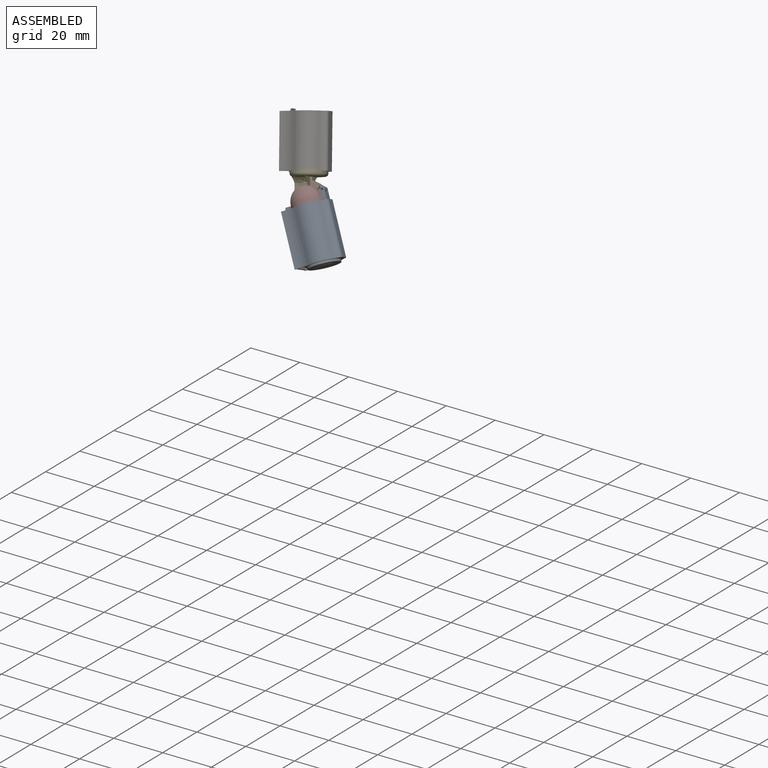
[diagram: assembled view]
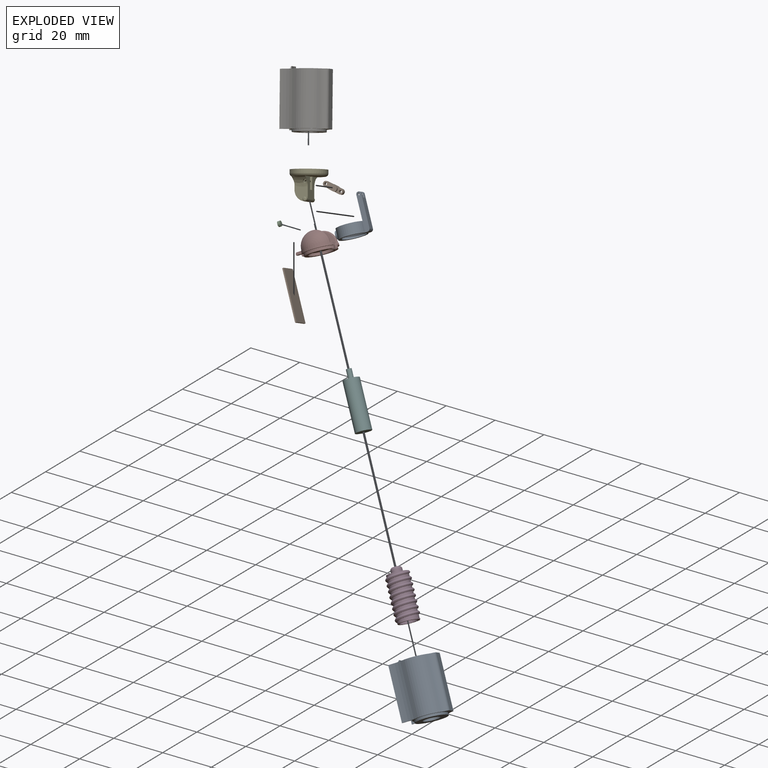
[diagram: exploded view]
GUIDED TOUR — MATED ASSEMBLY (Onshape document 57e1681a29d2af11276832ef, AutoMate assembly 57e1681a29d2af11276832ef_2e630c3e89687d6d87365b1d_8f4f6b7c45595076984b9f0d_default)

This assembly has 10 components, labeled P0..P9 below (a component is one placed occurrence of a part; the same part can appear more than once), held together by 9 mates. A mate is a constraint between two components; its type names the relative motion it leaves free:
  FASTENED — locks the two components together rigidly (no relative motion),
  REVOLUTE — leaves rotation about the listed axis free (a hinge).
Axis/direction vectors are unit vectors and 'through' points are millimeter coordinates, both in the assembly's world frame.

MATES
  1. REVOLUTE "Top-to-Worm": P7 <-> P3, axis (-0.497, 0.313, 0.810) through (-23.39, 19.40, 32.22) mm
  2. REVOLUTE "Nut-to-Link": P1 <-> P8, axis (-0.153, 0.887, -0.436) through (-20.10, 23.21, 36.93) mm
  3. REVOLUTE "Link-to-Pivot": P1 <-> P4, axis (-0.153, 0.887, -0.436) through (-25.92, 22.91, 38.36) mm
  4. FASTENED "Pcb-to-Sleeve": P9 <-> P0, direction (0.854, 0.340, 0.393) through (-25.18, 13.07, 19.97) mm
  5. FASTENED "Top-to-Sleeve": P7 <-> P0, direction (0.497, -0.313, -0.810) through (-22.64, 18.93, 31.00) mm
  6. FASTENED "Motor-to-Worm": P5 <-> P3, direction (-0.497, 0.313, 0.810) through (-23.51, 19.48, 32.42) mm
  7. FASTENED "Magnet-to-Bolt": P2 <-> P8, direction (0.854, 0.340, 0.393) through (-23.84, 15.39, 24.07) mm
  8. REVOLUTE "Pivot-to-Top": P4 <-> P7, axis (0.153, -0.887, 0.436) through (-23.62, 16.87, 34.91) mm
  9. FASTENED "Pivot-to-Sleeve": P4 <-> P6, direction (-0.260, 0.390, 0.883) through (-26.36, 23.11, 40.86) mm

ASSEMBLY ORDER
  1. P4 — the base component [order heuristic]
  2. P1 — core [order heuristic]
  3. P6 — core [order heuristic]
  4. P7 — core [order heuristic]
  5. P3 — core [order heuristic]
  6. P5 [order verified]
  7. P8 — core [order heuristic]
  8. P2 [order verified]
  9. P9 [order verified]
  10. P0 — core [order heuristic]
(P2, P9 verified with a relaxed clearance tolerance: the source model stores slight part interference there.)
Order-tag legend:
  [order verified] — this step's position reverses a verified removal order: the component was checked to insert without passing through the ones already placed.
  [order heuristic] — the first 7 components form the assembly's core: parts whose collision-free extraction could not be verified, listed in mate-graph order.

Of the 10 components, 4 carry the full construction recipe — the FeatureScript program that regenerates the part's solid from scratch; the rest are supplied as boundary geometry only.
Each toured component is shown spotlighted twice — in the assembled view, then in the exploded view, where a leader line traces a displaced component back to its assembled socket (saturated green if recipe-attached, orange if geometry-only; every other component desaturated gray) — followed by its recipe or geometry summary and the mates that hold it.
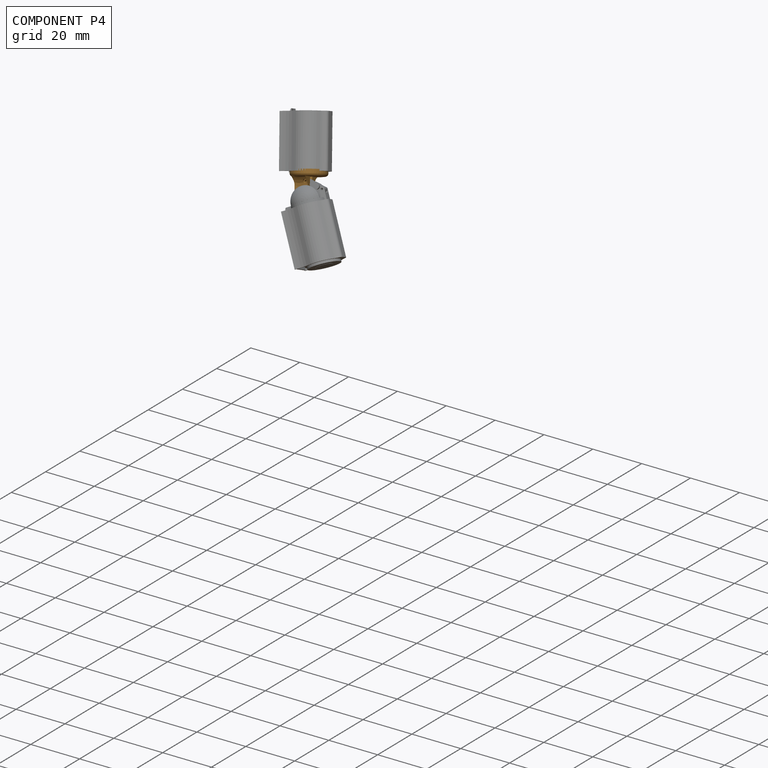
[diagram: component P4 — assembled]
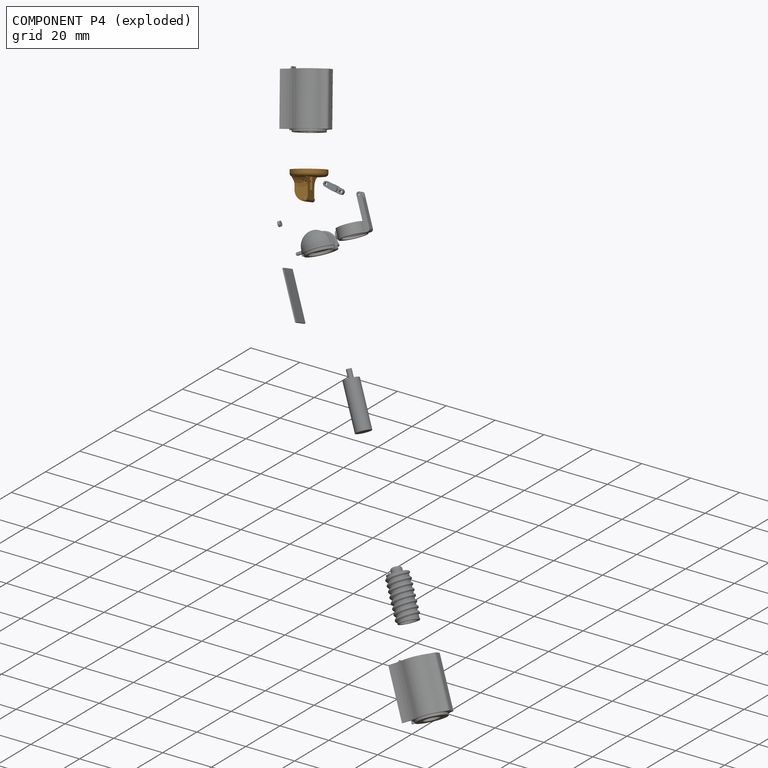
[diagram: component P4 — exploded]
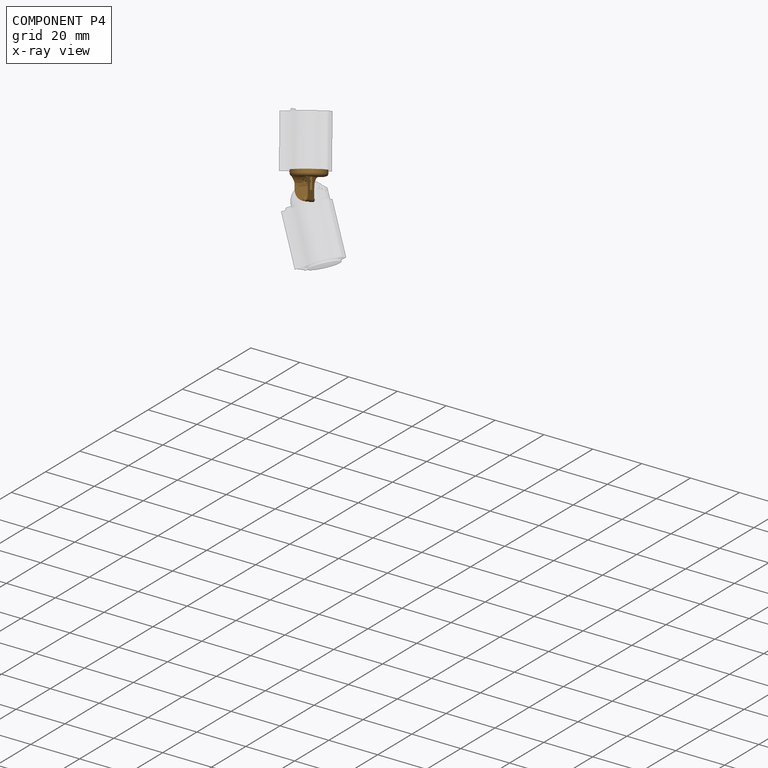
[diagram: component P4 — x-ray view]
COMPONENT P4 — geometry summary (no construction recipe available for this part):
  bounding box: 14.9 x 14.2 x 10.9 mm
  B-rep topology: 1 solid, 32 faces, 168 edges
  volume: 342 mm^3 (15% of its bounding box)
  symmetry: mirror-symmetric across its y mid-plane
Held by: REVOLUTE mate "Link-to-Pivot" to P1; REVOLUTE mate "Pivot-to-Top" to P7; FASTENED mate "Pivot-to-Sleeve" to P6.
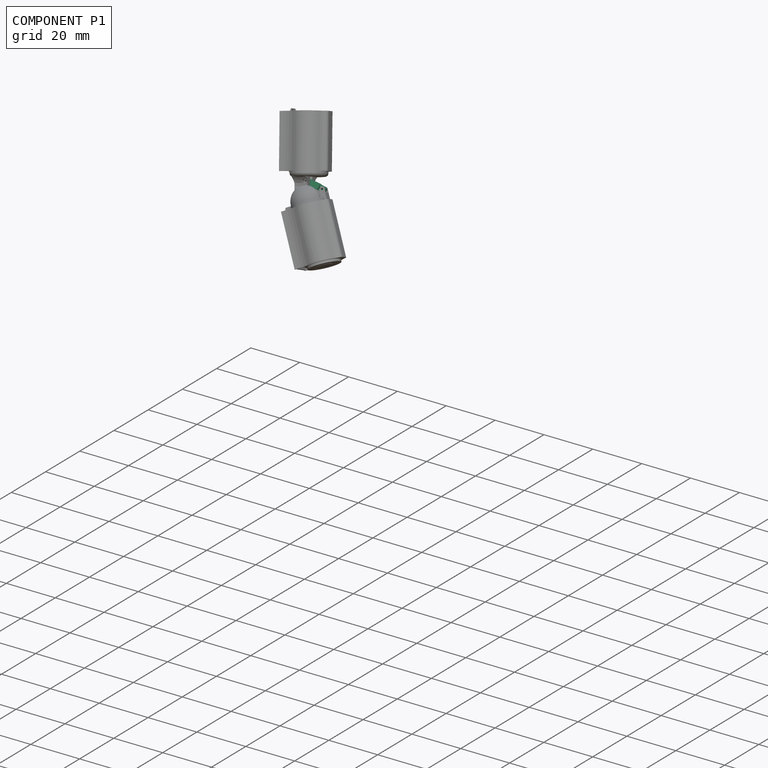
[diagram: component P1 — assembled]
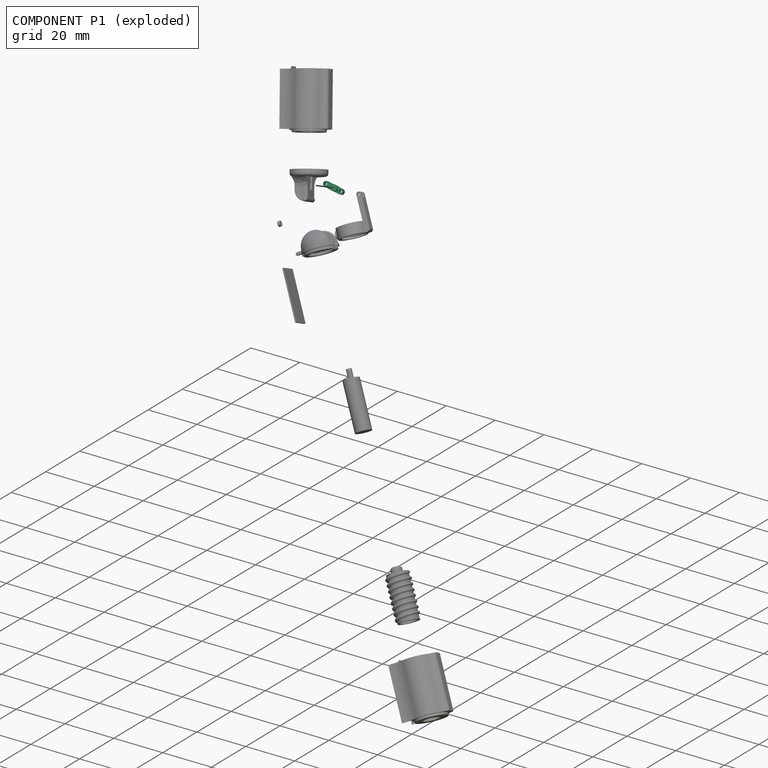
[diagram: component P1 — exploded]
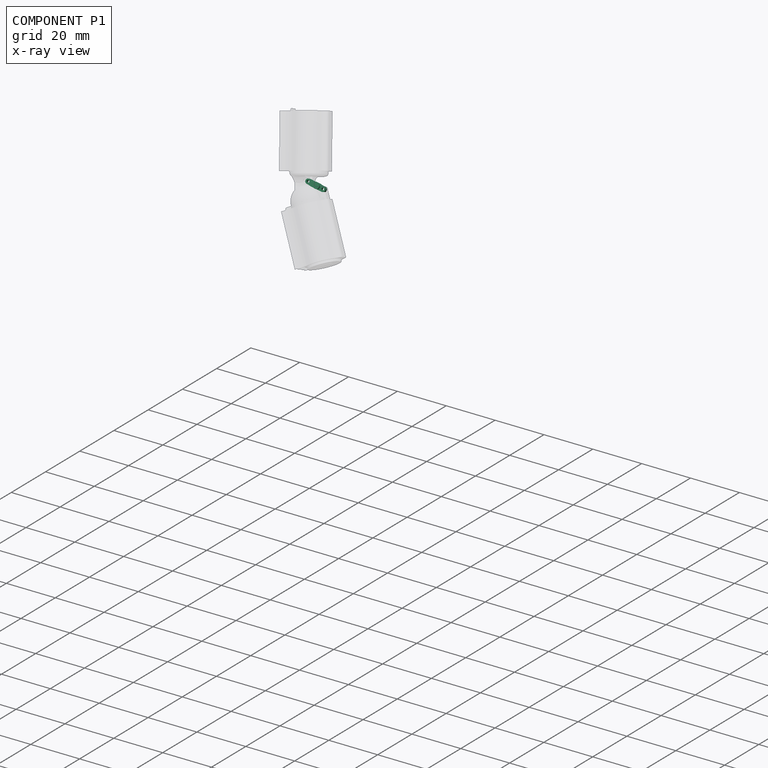
[diagram: component P1 — x-ray view]
COMPONENT P1 — recipe-attached (CADFS 00252577, mesh-verified: the recipe's output STEP matches this component's geometry to below the mesh-comparison resolution (tessellation chordal tolerance ~0.0132 mm)).
Held by: REVOLUTE mate "Nut-to-Link" to P8; REVOLUTE mate "Link-to-Pivot" to P4.
Construction recipe (FeatureScript — the CAD program that rebuilds this solid; sketch coordinates are in the units given by the * unit suffixes, e.g. mm):

FeatureScript 1511;
import(path : "onshape/std/geometry.fs", version : "1511.0");
import(path : "onshape/std/common.fs", version : "1511.0");
const mm = millimeter;
const VERTEX = EntityType.VERTEX;
const EDGE = EntityType.EDGE;
const FACE = EntityType.FACE;
const BODY = EntityType.BODY;
function v(x, y){return vector(x, y);}
function OD(order){return orderDisambiguation(order);}
function OSD(set){return originalSetDisambiguation(set);}
function TD(topology){return topologyDisambiguation(topology);}
function TDD(query){return trueDependencyDisambiguation(query);}
function sQuery(a, b, c) {return sketchEntityQuery(a, b, c);}

annotation { "Feature Type Name" : "Feature", "Feature Type Description" : "" }
export const myFeature = defineFeature(function(context is Context, id is Id, definition is map)
    precondition{}
    {
        {
            var Q0;
            Q0=qCreatedBy(makeId("Front.planeOp"),FACE);
            var sketch = newSketch(context, id + "F0", { "sketchPlane" : qUnion([Q0])});
            skLineSegment(sketch, "E0.bottom", {"start": v(-1.2, -0.25) * mm, "end": v(-6.2, -0.25) * mm});
            skLineSegment(sketch, "E0.top", {"start": v(-1, -2.25) * mm, "end": v(-6.2, -2.25) * mm});
            skArc(sketch, "E1", {"start": v(0, -2.23) * mm, "mid": v(0.8, -1.25) * mm, "end": v(0, -0.27) * mm});
            skLineSegment(sketch, "E2", {"start": v(-1.2, -0.25) * mm, "end": v(0, -0.27) * mm});
            skLineSegment(sketch, "E3", {"start": v(-1, -2.25) * mm, "end": v(0, -2.23) * mm});
            skArc(sketch, "E4", {"start": v(-4, -0.25) * mm, "mid": v(-5, -1.25) * mm, "end": v(-4, -2.25) * mm});
            skPoint(sketch, "E5", {"position": v(-6.2, -1.25) * mm});
            skCircle(sketch, "E6", {"center": v(-6.2, -1.25) * mm, "radius": 0.5 * mm});
            skCircle(sketch, "E7", {"center": v(-0.2, -1.25) * mm, "radius": 0.5 * mm});
            skArc(sketch, "E8", {"start": v(-2.4, -2.25) * mm, "mid": v(-1.4, -1.25) * mm, "end": v(-2.4, -0.25) * mm});
            skLineSegment(sketch, "E9", {"start": v(-6.2, -0.25) * mm, "end": v(-6.2, -0.25) * mm});
            skArc(sketch, "E10", {"start": v(-6.2, -0.25) * mm, "mid": v(-7.2, -1.25) * mm, "end": v(-6.2, -2.25) * mm});
            skLineSegment(sketch, "E11", {"start": v(-7.2, -1.25) * mm, "end": v(0.8, -1.25) * mm, "construction": true});
            skSolve(sketch);
        }
        {
            var Q0;
            {var subQ5=sQuery(id+"F0.wireOp",EDGE,"E4");Q0=makeQuery(id+"F0.imprint","IMPRINT",FACE,{"disambiguationData":[TD([[makeQuery(id+"F0.imprint","IMPRINT",EDGE,{"derivedFrom":subQ5}),1.0]])]});}
            var Q1;
            Q1=makeQuery(id+"F0.imprint","IMPRINT",FACE,{"disambiguationData":[TD([[makeQuery(id+"F0.imprint","IMPRINT",EDGE,{"derivedFrom":sQuery(id+"F0.wireOp",EDGE,"E1")}),1.0]])]});
            var Q2;
            {var subQ0=sQuery(id+"F0.wireOp",EDGE,"bQbziyav-jX1J-XLfE-gFu1-S9SHtQTFnJFi");var subQ1=sQuery(id+"F0.wireOp",EDGE,"Mre1yFln-Q6Go-vBB8-nmWn-4SXoC3vIunpy");var subQ2=makeQuery(id+"F0.imprint","INTERSECT",VERTEX,{"derivedFrom":[subQ1,subQ0]});Q2=makeQuery(id+"F0.imprint","IMPRINT",FACE,{"disambiguationData":[TD([[makeQuery(id+"F0.imprint","IMPRINT",EDGE,{"disambiguationData":[TD([[subQ2,1.0]])],"derivedFrom":subQ1}),1.0]])]});}
            var Q3;
            {var subQ1=sQuery(id+"F0.wireOp",EDGE,"E0.bottom");var subQ3=sQuery(id+"F0.wireOp",EDGE,"Mre1yFln-Q6Go-vBB8-nmWn-4SXoC3vIunpy");var subQ4=makeQuery(id+"F0.imprint","INTERSECT",VERTEX,{"derivedFrom":[subQ1,subQ3]});Q3=makeQuery(id+"F0.imprint","IMPRINT",FACE,{"disambiguationData":[TD([[makeQuery(id+"F0.imprint","IMPRINT",EDGE,{"disambiguationData":[TD([[subQ4,-1.0]])],"derivedFrom":subQ3}),1.0]])]});}
            var Q4;
            {var subQ1=sQuery(id+"F0.wireOp",EDGE,"E0.top");var subQ3=sQuery(id+"F0.wireOp",EDGE,"bQbziyav-jX1J-XLfE-gFu1-S9SHtQTFnJFi");var subQ4=makeQuery(id+"F0.imprint","INTERSECT",VERTEX,{"derivedFrom":[subQ1,subQ3]});Q4=makeQuery(id+"F0.imprint","IMPRINT",FACE,{"disambiguationData":[TD([[makeQuery(id+"F0.imprint","IMPRINT",EDGE,{"disambiguationData":[TD([[subQ4,1.0]])],"derivedFrom":subQ3}),1.0]])]});}
            var Q5;
            {var subQ0=sQuery(id+"F0.wireOp",EDGE,"E4");Q5=makeQuery(id+"F0.imprint","IMPRINT",FACE,{"disambiguationData":[TD([[makeQuery(id+"F0.imprint","IMPRINT",EDGE,{"derivedFrom":subQ0}),-1.0]])]});}
            var Q6;
            {var subQ1=sQuery(id+"F0.wireOp",EDGE,"E0.bottom");var subQ3=sQuery(id+"F0.wireOp",EDGE,"E8");var subQ4=makeQuery(id+"F0.imprint","INTERSECT",VERTEX,{"derivedFrom":[subQ1,subQ3]});Q6=makeQuery(id+"F0.imprint","IMPRINT",FACE,{"disambiguationData":[TD([[makeQuery(id+"F0.imprint","IMPRINT",EDGE,{"disambiguationData":[TD([[subQ4,1.0]])],"derivedFrom":subQ3}),-1.0]])]});}
            var Q7;
            {var subQ1=sQuery(id+"F0.wireOp",EDGE,"E0.top");var subQ3=sQuery(id+"F0.wireOp",EDGE,"E8");var subQ4=makeQuery(id+"F0.imprint","INTERSECT",VERTEX,{"derivedFrom":[subQ1,subQ3]});Q7=makeQuery(id+"F0.imprint","IMPRINT",FACE,{"disambiguationData":[TD([[makeQuery(id+"F0.imprint","IMPRINT",EDGE,{"disambiguationData":[TD([[subQ4,-1.0]])],"derivedFrom":subQ3}),-1.0]])]});}
            extrude(context, id + "F1", {"entities" : qUnion([Q0, Q1, Q2, Q3, Q4, Q5, Q6, Q7]), "depth" : 1.5 * mm});
        }
        {
            var Q0;
            {var subQ0=sQuery(id+"F0.wireOp",EDGE,"E4");Q0=makeQuery(id+"F0.imprint","IMPRINT",FACE,{"disambiguationData":[TD([[makeQuery(id+"F0.imprint","IMPRINT",EDGE,{"derivedFrom":subQ0}),1.0]])]});}
            var Q1;
            {var subQ0=sQuery(id+"F0.wireOp",EDGE,"bQbziyav-jX1J-XLfE-gFu1-S9SHtQTFnJFi");var subQ1=sQuery(id+"F0.wireOp",EDGE,"Mre1yFln-Q6Go-vBB8-nmWn-4SXoC3vIunpy");var subQ2=makeQuery(id+"F0.imprint","INTERSECT",VERTEX,{"derivedFrom":[subQ1,subQ0]});Q1=makeQuery(id+"F0.imprint","IMPRINT",FACE,{"disambiguationData":[TD([[makeQuery(id+"F0.imprint","IMPRINT",EDGE,{"disambiguationData":[TD([[subQ2,1.0]])],"derivedFrom":subQ1}),1.0]])]});}
            extrude(context, id + "F2", {"entities" : qUnion([Q0, Q1]), "operationType" : NewBodyOperationType.ADD, "oppositeDirection" : true, "depth" : 0.75 * mm, "hasSecondDirection" : true, "secondDirectionOppositeDirection" : false, "secondDirectionDepth" : 2.25 * mm});
        }
    });
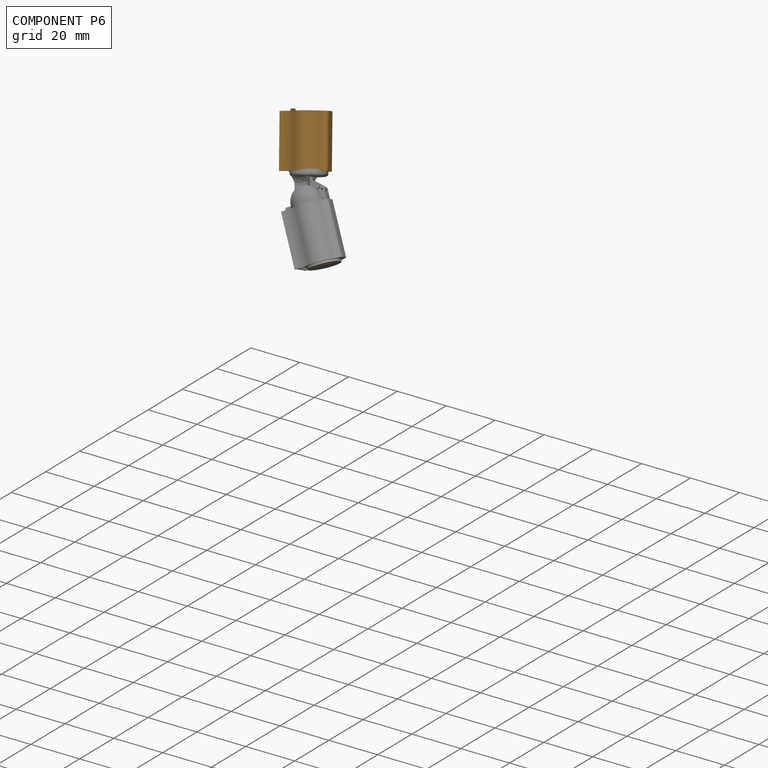
[diagram: component P6 — assembled]
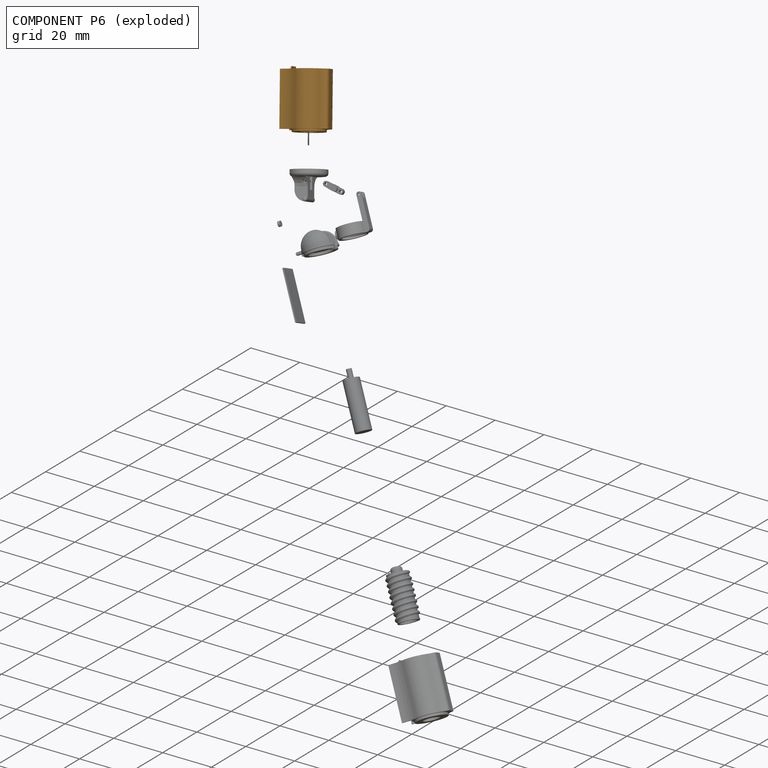
[diagram: component P6 — exploded]
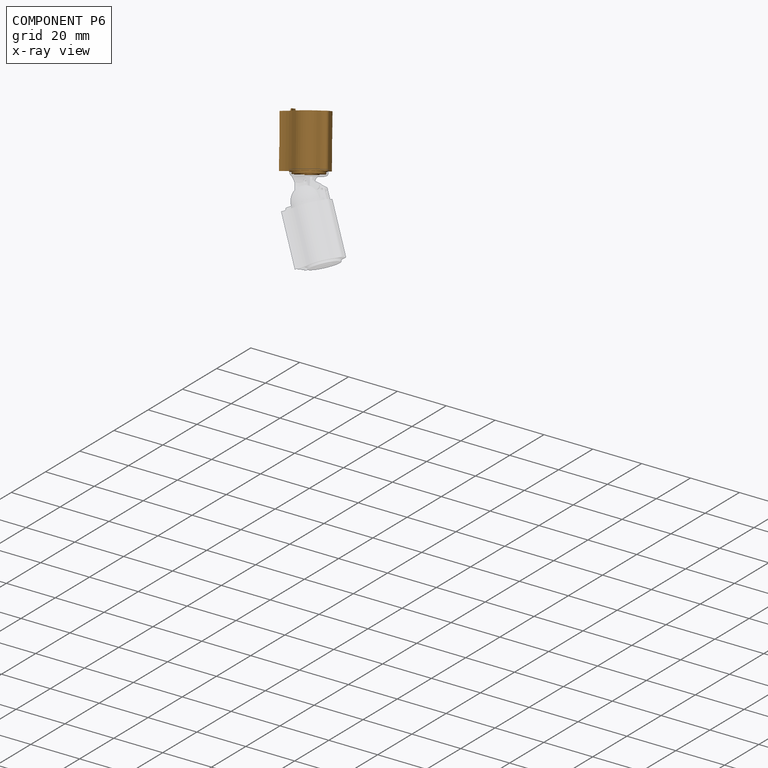
[diagram: component P6 — x-ray view]
COMPONENT P6 — geometry summary (no construction recipe available for this part):
  bounding box: 22.1 x 16.7 x 13.0 mm
  B-rep topology: 1 solid, 41 faces, 238 edges
  volume: 789 mm^3 (16% of its bounding box)
  symmetry: mirror-symmetric across its y mid-plane
Held by: FASTENED mate "Pivot-to-Sleeve" to P4.
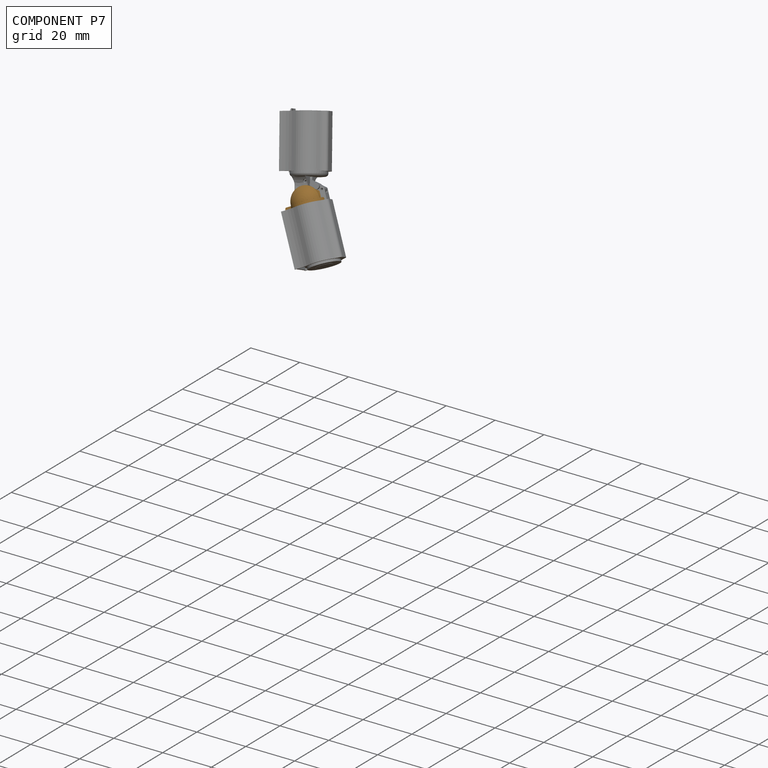
[diagram: component P7 — assembled]
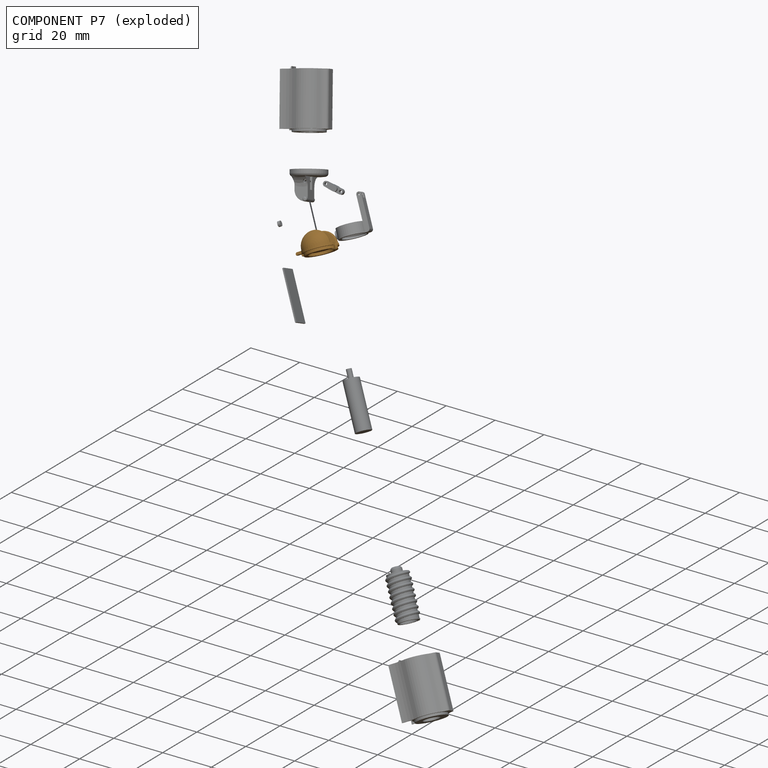
[diagram: component P7 — exploded]
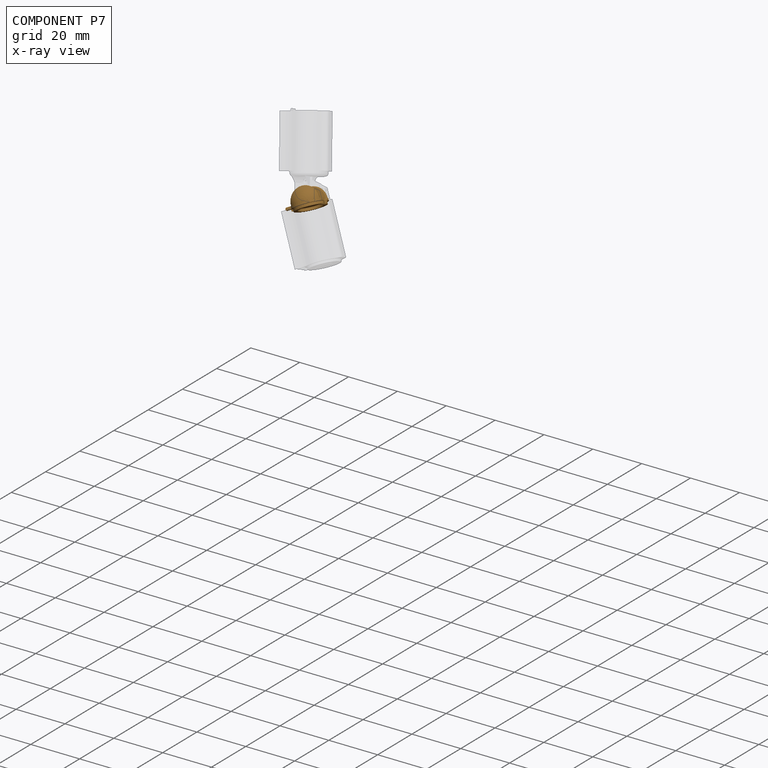
[diagram: component P7 — x-ray view]
COMPONENT P7 — geometry summary (no construction recipe available for this part):
  bounding box: 14.0 x 13.1 x 8.1 mm
  B-rep topology: 1 solid, 55 faces, 290 edges
  volume: 352 mm^3 (24% of its bounding box)
  symmetry: mirror-symmetric across its y mid-plane
Held by: REVOLUTE mate "Top-to-Worm" to P3; FASTENED mate "Top-to-Sleeve" to P0; REVOLUTE mate "Pivot-to-Top" to P4.
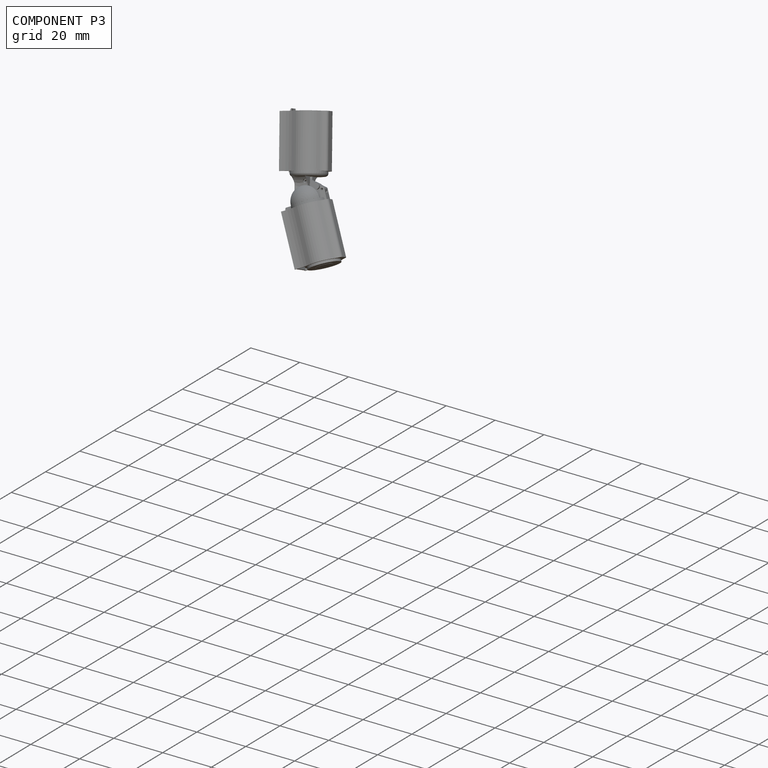
[diagram: component P3 — assembled]
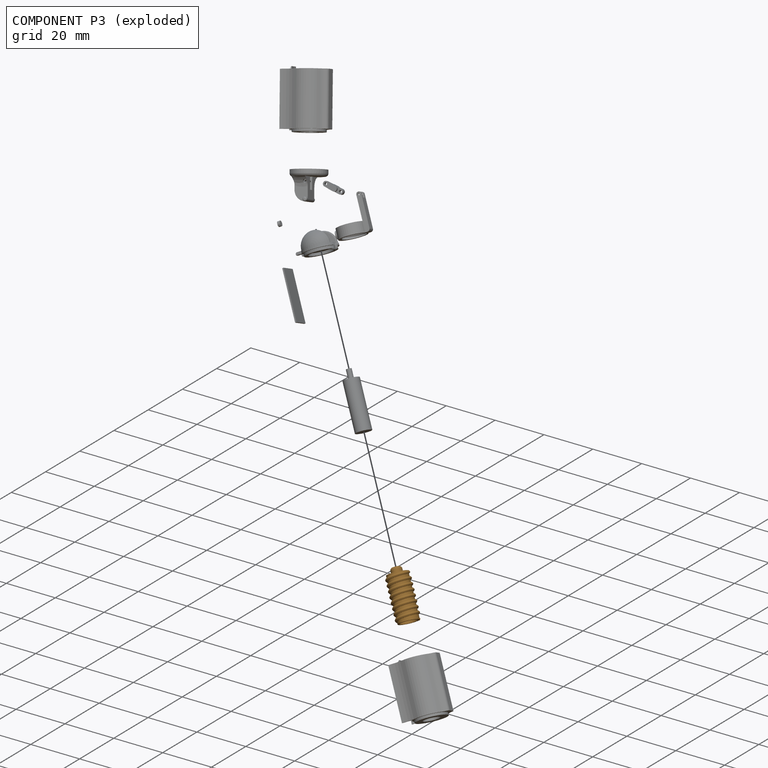
[diagram: component P3 — exploded]
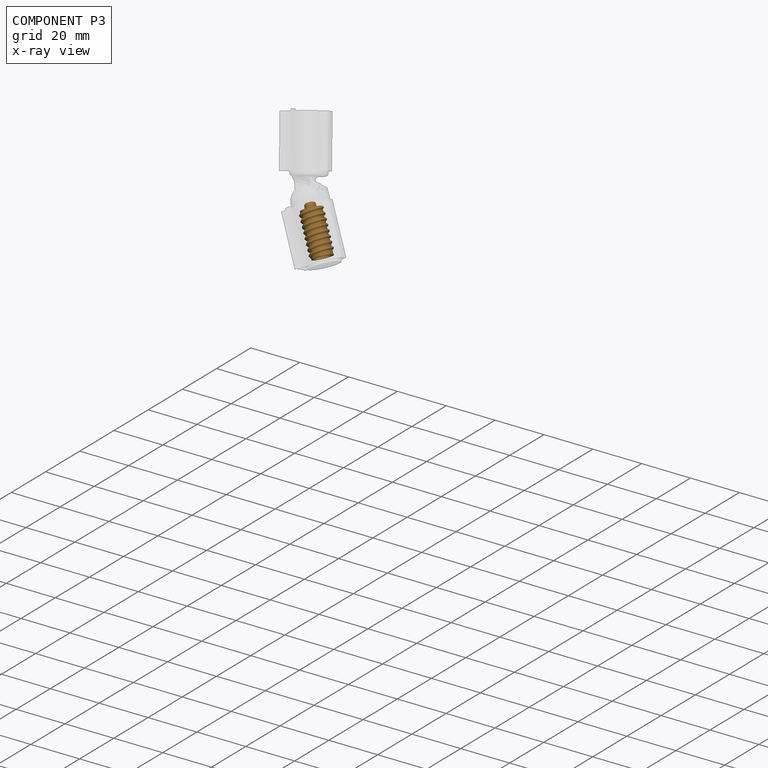
[diagram: component P3 — x-ray view]
COMPONENT P3 — geometry summary (no construction recipe available for this part):
  bounding box: 19.3 x 10.3 x 8.9 mm
  B-rep topology: 1 solid, 22 faces, 104 edges
  volume: 491 mm^3 (28% of its bounding box)
Held by: REVOLUTE mate "Top-to-Worm" to P7; FASTENED mate "Motor-to-Worm" to P5.
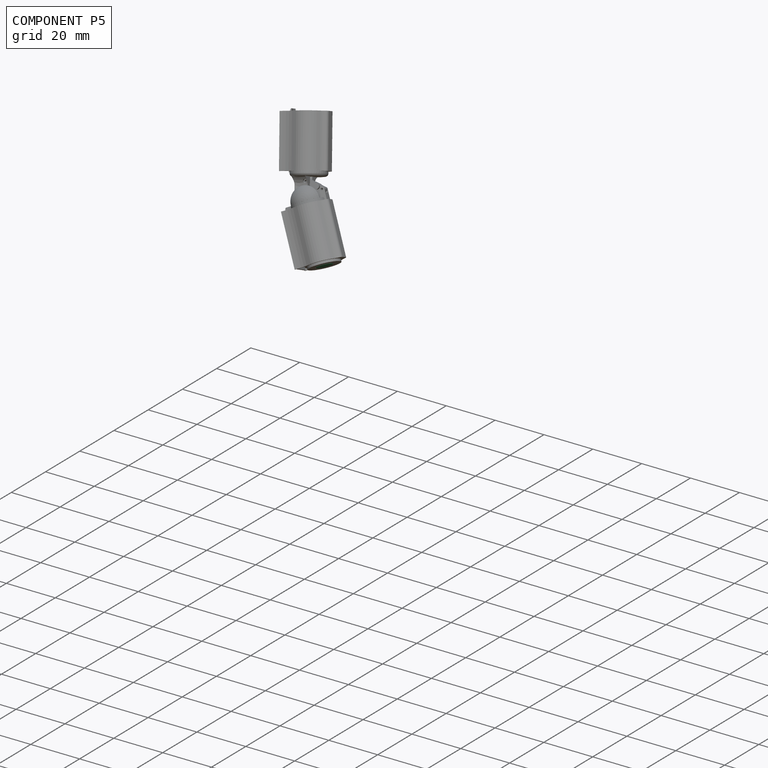
[diagram: component P5 — assembled]
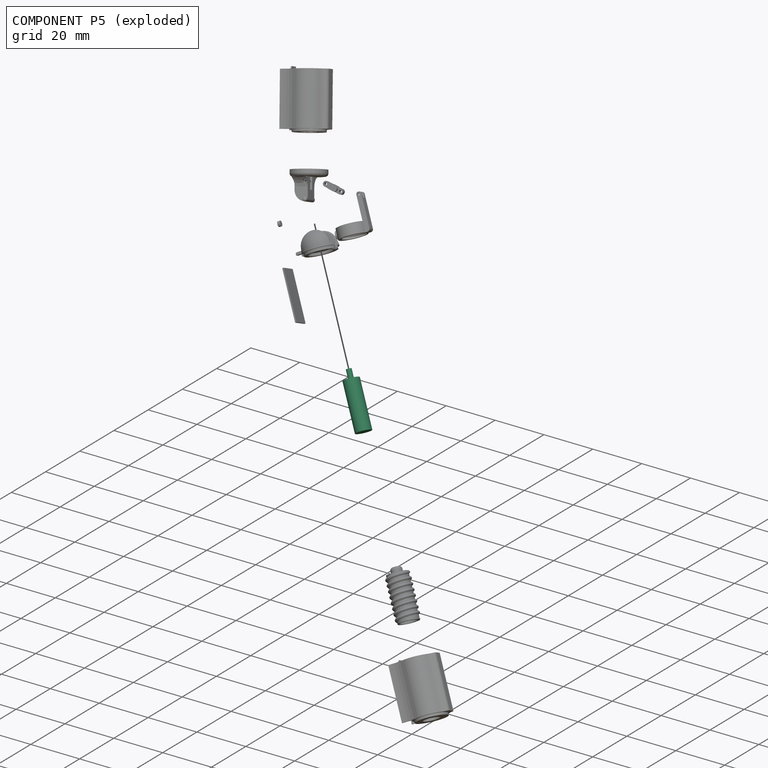
[diagram: component P5 — exploded]
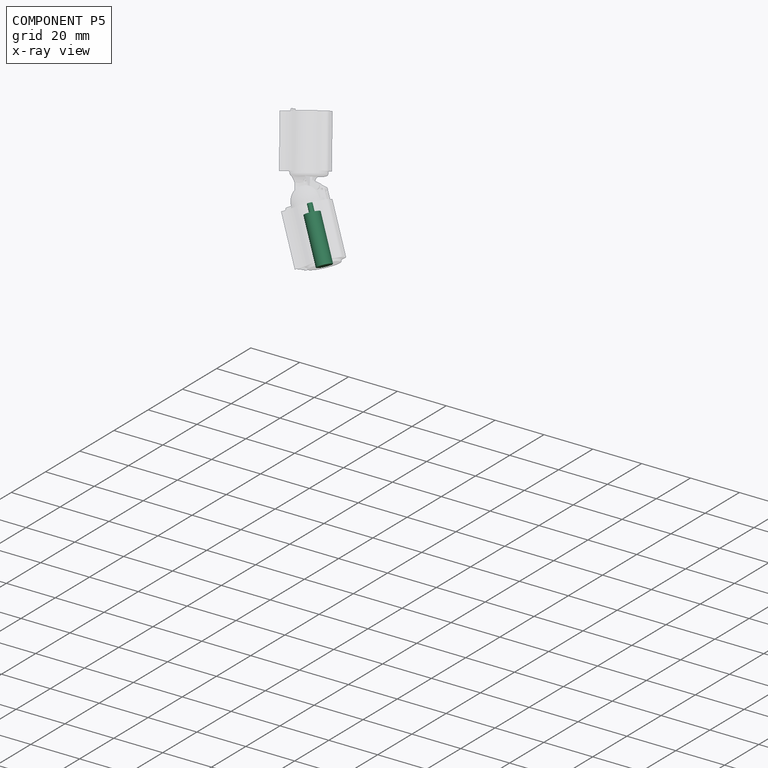
[diagram: component P5 — x-ray view]
COMPONENT P5 — recipe-attached (CADFS 00820043, mesh-verified: the recipe's output STEP matches this component's geometry to below the mesh-comparison resolution (tessellation chordal tolerance ~0.0352 mm)).
Held by: FASTENED mate "Motor-to-Worm" to P3.
Construction recipe (FeatureScript — the CAD program that rebuilds this solid; sketch coordinates are in the units given by the * unit suffixes, e.g. mm):

FeatureScript 1511;
import(path : "onshape/std/geometry.fs", version : "1511.0");
import(path : "onshape/std/common.fs", version : "1511.0");
const mm = millimeter;
const VERTEX = EntityType.VERTEX;
const EDGE = EntityType.EDGE;
const FACE = EntityType.FACE;
const BODY = EntityType.BODY;
function v(x, y){return vector(x, y);}
function OD(order){return orderDisambiguation(order);}
function OSD(set){return originalSetDisambiguation(set);}
function TD(topology){return topologyDisambiguation(topology);}
function TDD(query){return trueDependencyDisambiguation(query);}
function sQuery(a, b, c) {return sketchEntityQuery(a, b, c);}

annotation { "Feature Type Name" : "Feature", "Feature Type Description" : "" }
export const myFeature = defineFeature(function(context is Context, id is Id, definition is map)
    precondition{}
    {
        {
            var Q0;
            Q0=qCreatedBy(makeId("Top.planeOp"),FACE);
            var sketch = newSketch(context, id + "F0", { "sketchPlane" : qUnion([Q0])});
            skCircle(sketch, "E0", {"center": v(0, 0) * mm, "radius": 3 * mm});
            skCircle(sketch, "E1", {"center": v(0, 0) * mm, "radius": 1 * mm});
            skSolve(sketch);
        }
        {
            var Q0;
            Q0=makeQuery(id+"F0.imprint","IMPRINT",FACE,{"disambiguationData":[TD([[makeQuery(id+"F0.imprint","IMPRINT",EDGE,{"derivedFrom":sQuery(id+"F0.wireOp",EDGE,"E1")}),1.0]])]});
            extrude(context, id + "F1", {"entities" : qUnion([Q0]), "depth" : 21.9 * mm});
        }
        {
            var Q0;
            Q0=makeQuery(id+"F0.imprint","IMPRINT",FACE,{"disambiguationData":[TD([[makeQuery(id+"F0.imprint","IMPRINT",EDGE,{"derivedFrom":sQuery(id+"F0.wireOp",EDGE,"E0")}),1.0]])]});
            extrude(context, id + "F2", {"entities" : qUnion([Q0]), "operationType" : NewBodyOperationType.ADD, "depth" : 18.4 * mm});
        }
    });
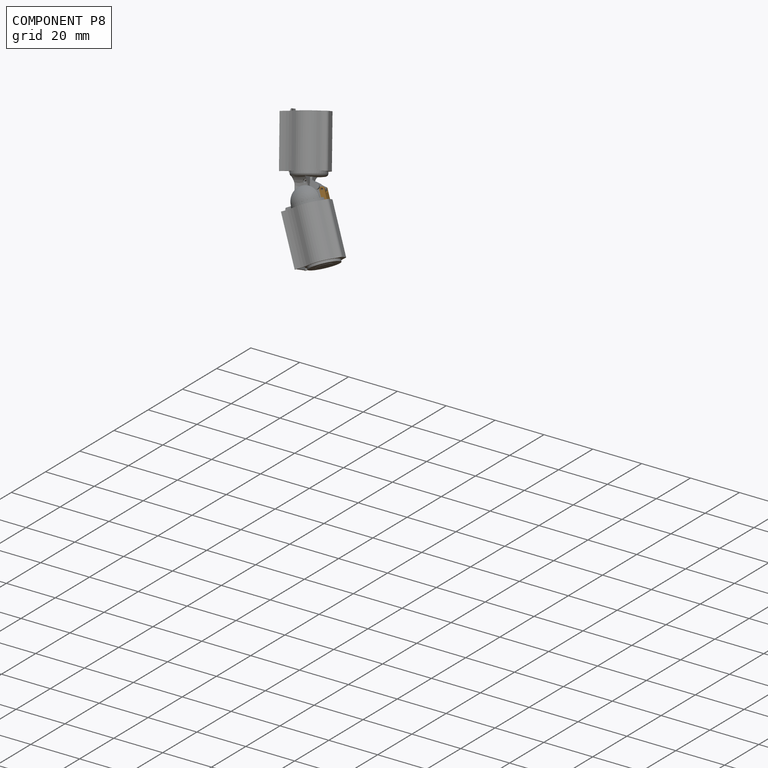
[diagram: component P8 — assembled]
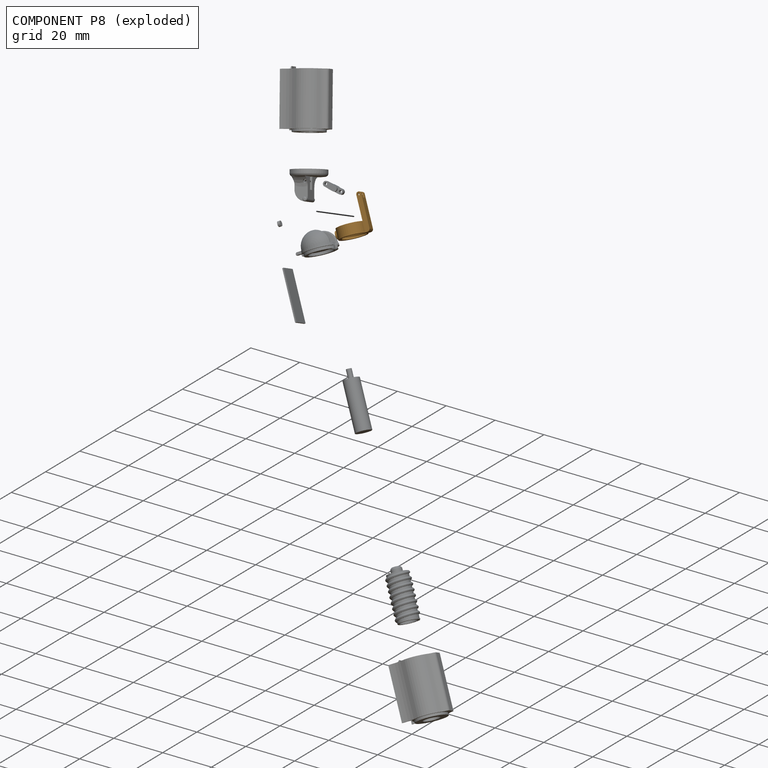
[diagram: component P8 — exploded]
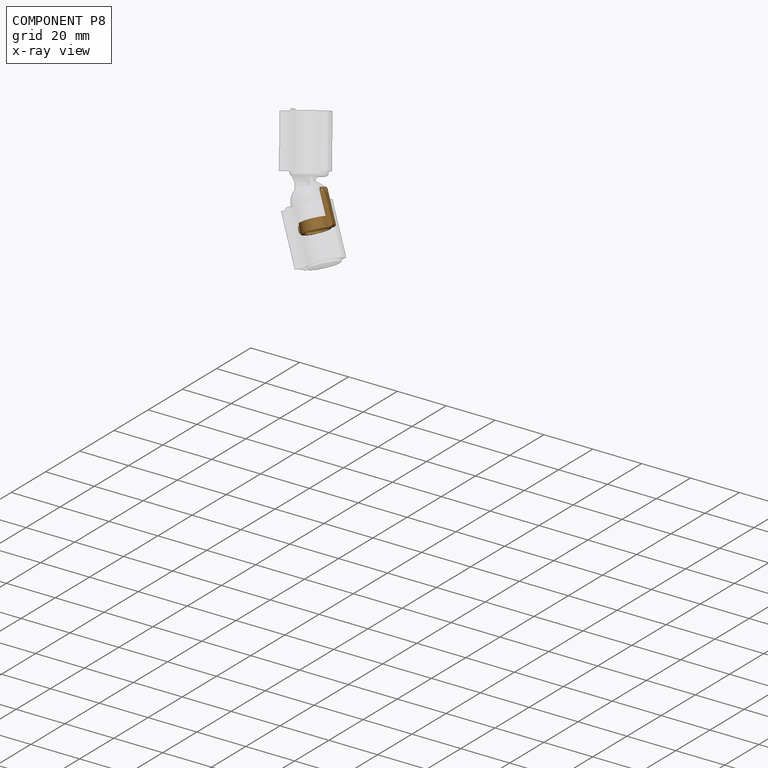
[diagram: component P8 — x-ray view]
COMPONENT P8 — geometry summary (no construction recipe available for this part):
  bounding box: 15.7 x 13.2 x 11.5 mm
  B-rep topology: 1 solid, 26 faces, 120 edges
  volume: 173 mm^3 (7% of its bounding box)
Held by: REVOLUTE mate "Nut-to-Link" to P1; FASTENED mate "Magnet-to-Bolt" to P2.
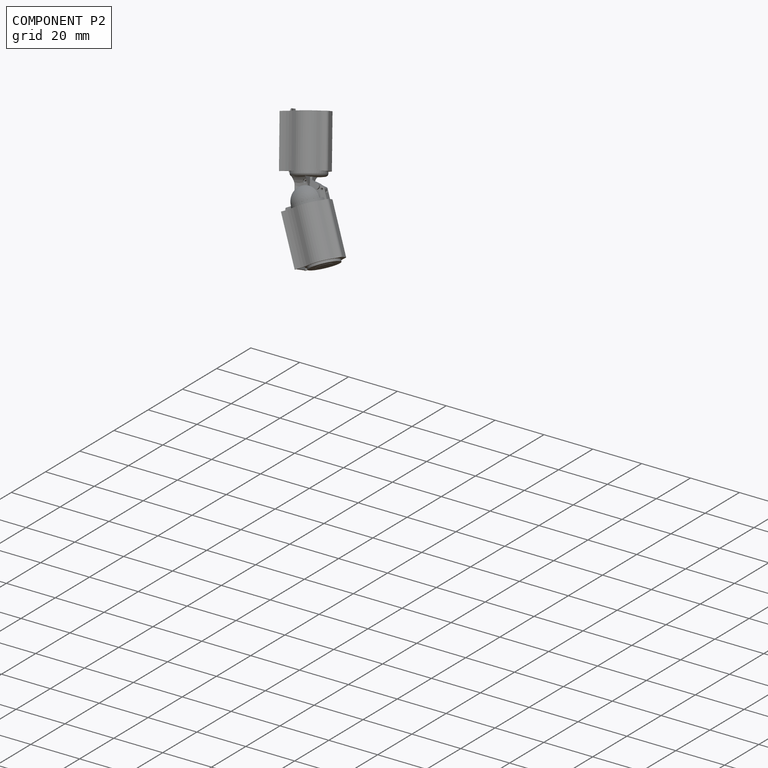
[diagram: component P2 — assembled]
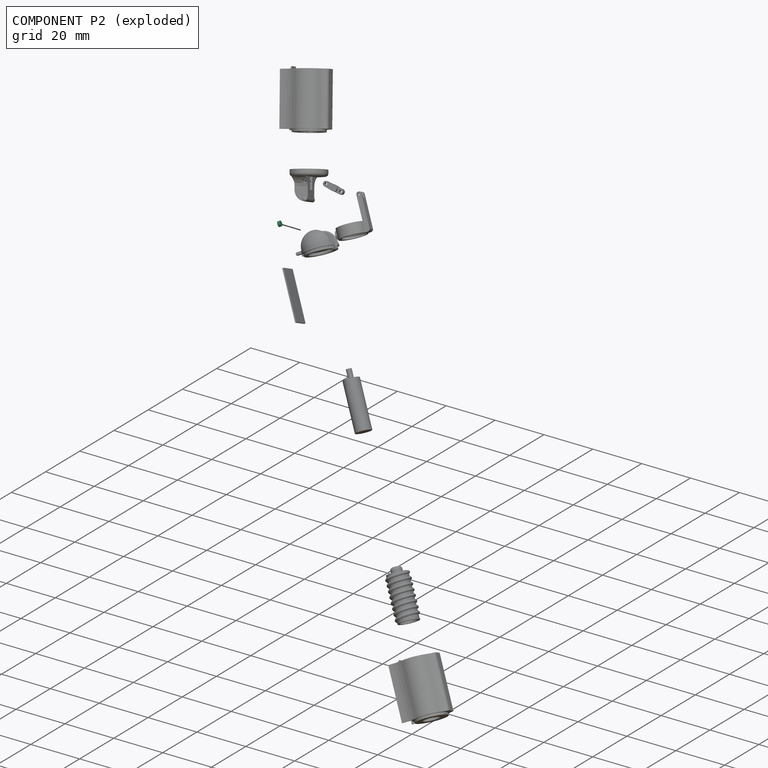
[diagram: component P2 — exploded]
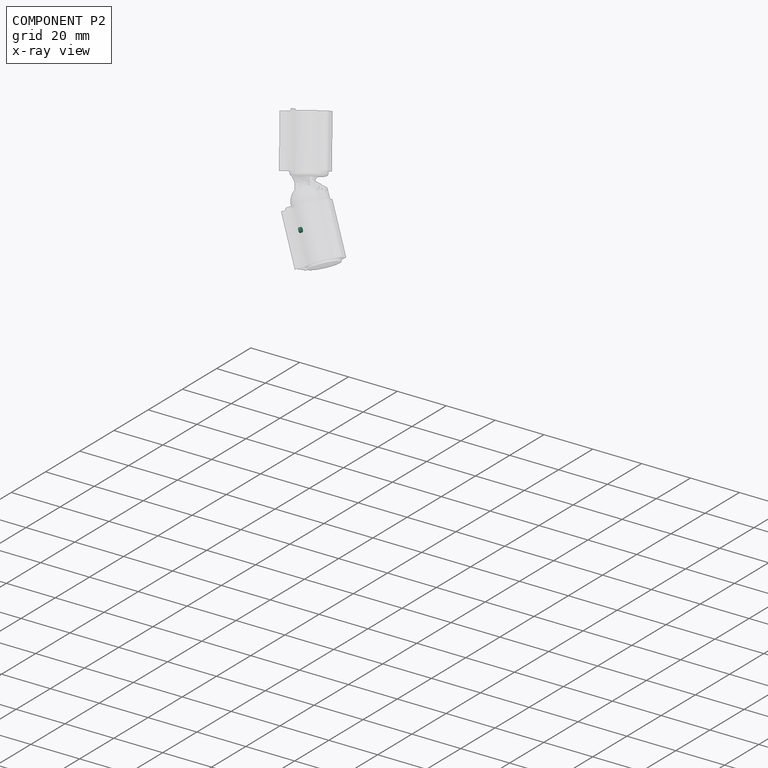
[diagram: component P2 — x-ray view]
COMPONENT P2 — recipe-attached (CADFS 00252572, mesh-verified: the recipe's output STEP matches this component's geometry to below the mesh-comparison resolution (tessellation chordal tolerance ~0.005 mm)).
Held by: FASTENED mate "Magnet-to-Bolt" to P8.
Construction recipe (FeatureScript — the CAD program that rebuilds this solid; sketch coordinates are in the units given by the * unit suffixes, e.g. mm):

FeatureScript 1511;
import(path : "onshape/std/geometry.fs", version : "1511.0");
import(path : "onshape/std/common.fs", version : "1511.0");
const mm = millimeter;
const VERTEX = EntityType.VERTEX;
const EDGE = EntityType.EDGE;
const FACE = EntityType.FACE;
const BODY = EntityType.BODY;
function v(x, y){return vector(x, y);}
function OD(order){return orderDisambiguation(order);}
function OSD(set){return originalSetDisambiguation(set);}
function TD(topology){return topologyDisambiguation(topology);}
function TDD(query){return trueDependencyDisambiguation(query);}
function sQuery(a, b, c) {return sketchEntityQuery(a, b, c);}

annotation { "Feature Type Name" : "Feature", "Feature Type Description" : "" }
export const myFeature = defineFeature(function(context is Context, id is Id, definition is map)
    precondition{}
    {
        {
            var Q0;
            Q0=qCreatedBy(makeId("Top.planeOp"),FACE);
            var sketch = newSketch(context, id + "F0", { "sketchPlane" : qUnion([Q0])});
            skCircle(sketch, "E0", {"center": v(0, 0) * mm, "radius": 1 * mm});
            skSolve(sketch);
        }
        {
            var Q0;
            Q0=makeQuery(id+"F0.imprint","IMPRINT",FACE,{"disambiguationData":[TD([[makeQuery(id+"F0.imprint","IMPRINT",EDGE,{"derivedFrom":sQuery(id+"F0.wireOp",EDGE,"E0")}),1.0]])]});
            extrude(context, id + "F1", {"entities" : qUnion([Q0]), "depth" : 1 * mm});
        }
    });
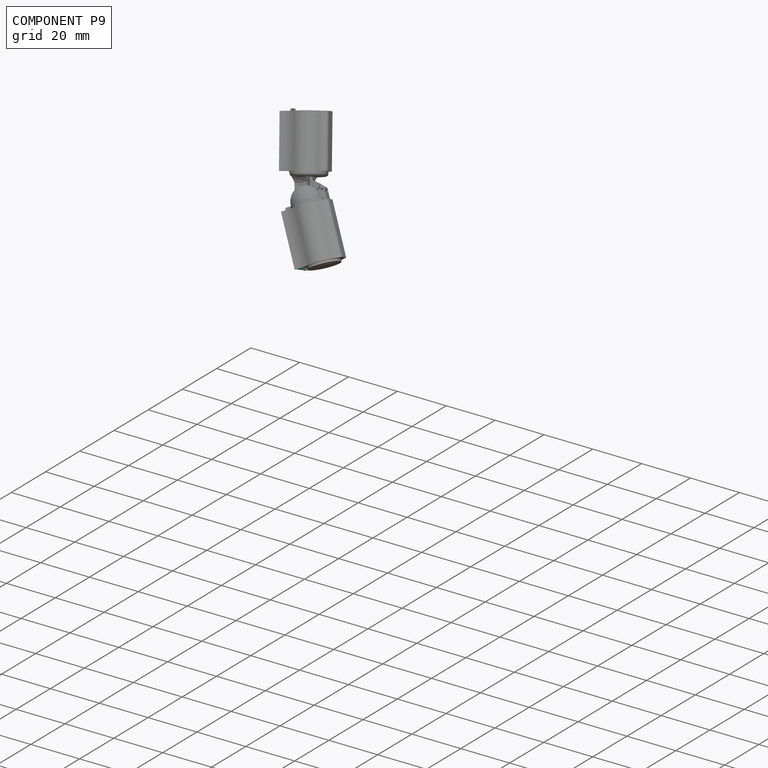
[diagram: component P9 — assembled]
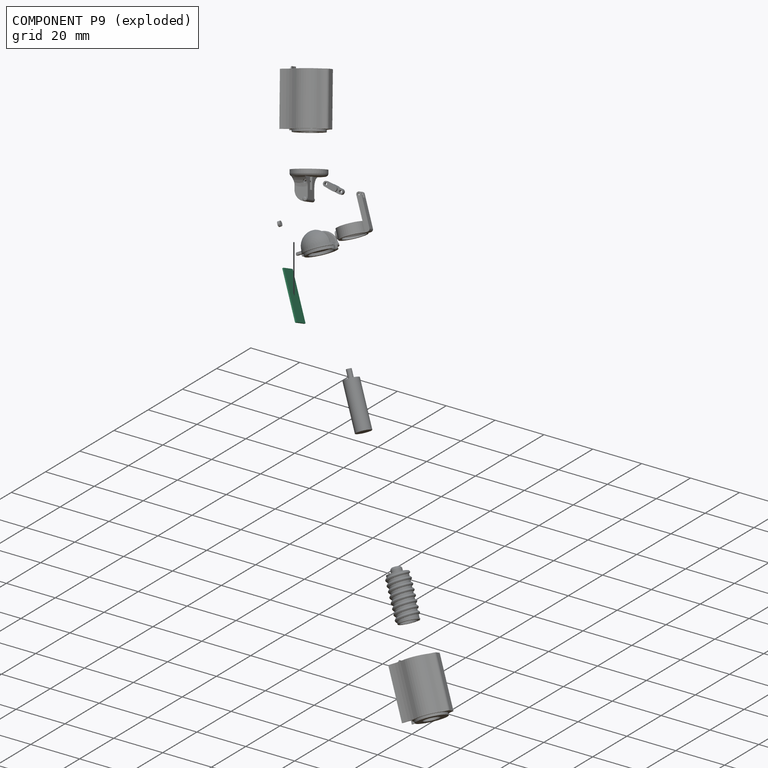
[diagram: component P9 — exploded]
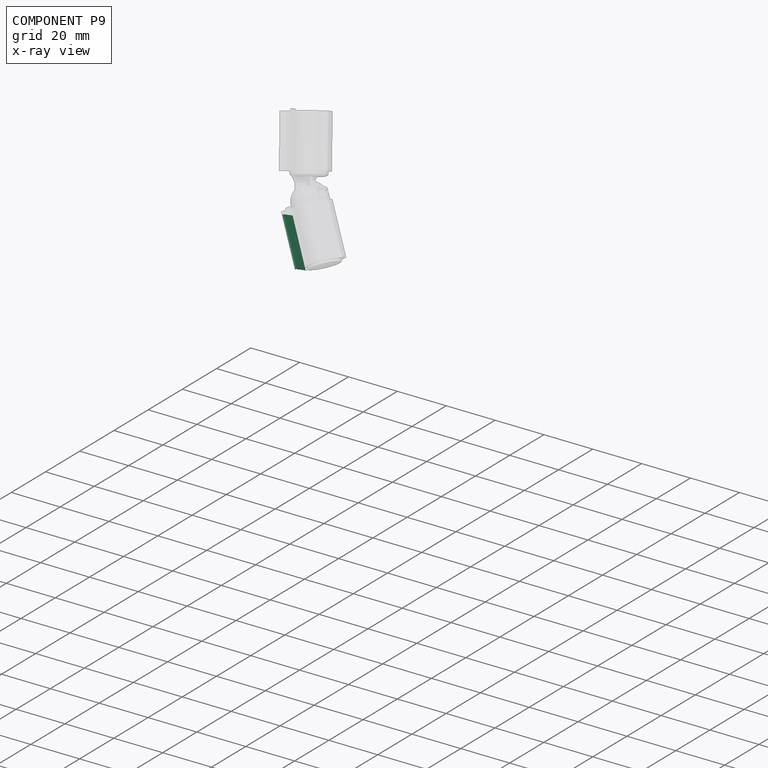
[diagram: component P9 — x-ray view]
COMPONENT P9 — recipe-attached (CADFS 00241079, mesh-verified: the recipe's output STEP matches this component's geometry to below the mesh-comparison resolution (tessellation chordal tolerance ~0.0309 mm)).
Held by: FASTENED mate "Pcb-to-Sleeve" to P0.
Construction recipe (FeatureScript — the CAD program that rebuilds this solid; sketch coordinates are in the units given by the * unit suffixes, e.g. mm):

FeatureScript 1511;
import(path : "onshape/std/geometry.fs", version : "1511.0");
import(path : "onshape/std/common.fs", version : "1511.0");
const mm = millimeter;
const VERTEX = EntityType.VERTEX;
const EDGE = EntityType.EDGE;
const FACE = EntityType.FACE;
const BODY = EntityType.BODY;
function v(x, y){return vector(x, y);}
function OD(order){return orderDisambiguation(order);}
function OSD(set){return originalSetDisambiguation(set);}
function TD(topology){return topologyDisambiguation(topology);}
function TDD(query){return trueDependencyDisambiguation(query);}
function sQuery(a, b, c) {return sketchEntityQuery(a, b, c);}

annotation { "Feature Type Name" : "Feature", "Feature Type Description" : "" }
export const myFeature = defineFeature(function(context is Context, id is Id, definition is map)
    precondition{}
    {
        {
            var Q0;
            Q0=qCreatedBy(makeId("Top.planeOp"),FACE);
            var sketch = newSketch(context, id + "F0", { "sketchPlane" : qUnion([Q0])});
            skLineSegment(sketch, "E0.bottom", {"start": v(-9.7, 14.16) * mm, "end": v(-1.7, 14.16) * mm});
            skLineSegment(sketch, "E0.top", {"start": v(-9.7, -4.84) * mm, "end": v(-1.7, -4.84) * mm});
            skLineSegment(sketch, "E0.left", {"start": v(-9.7, 14.16) * mm, "end": v(-9.7, -4.84) * mm});
            skLineSegment(sketch, "E0.right", {"start": v(-1.7, 14.16) * mm, "end": v(-1.7, -4.84) * mm});
            skSolve(sketch);
        }
        {
            var Q0;
            Q0=makeQuery(id+"F0.imprint","IMPRINT",FACE,{"disambiguationData":[TD([[makeQuery(id+"F0.imprint","IMPRINT",EDGE,{"derivedFrom":sQuery(id+"F0.wireOp",EDGE,"E0.bottom")}),-1.0]])]});
            extrude(context, id + "F1", {"entities" : qUnion([Q0]), "depth" : 0.5 * mm});
        }
    });
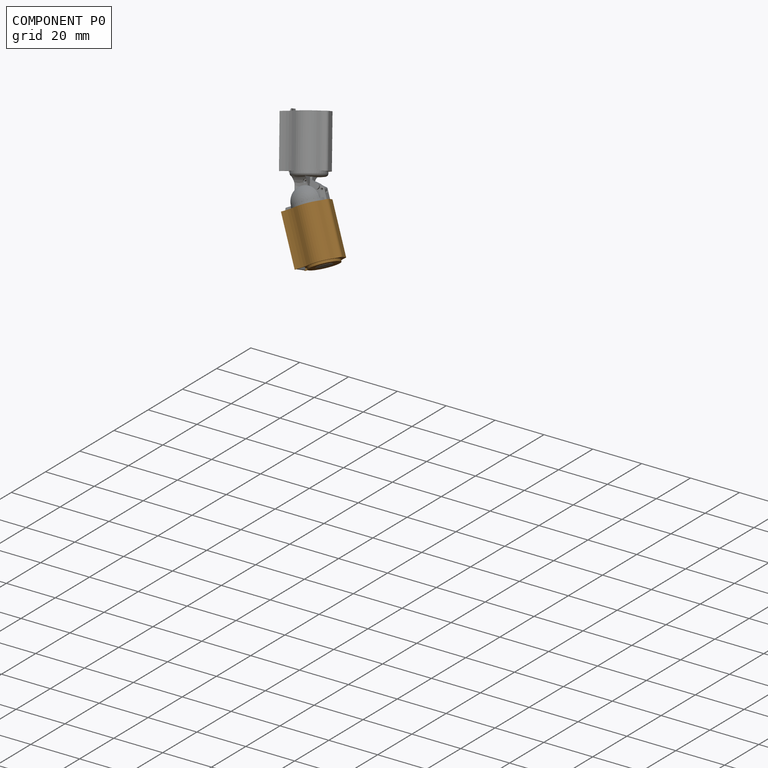
[diagram: component P0 — assembled]
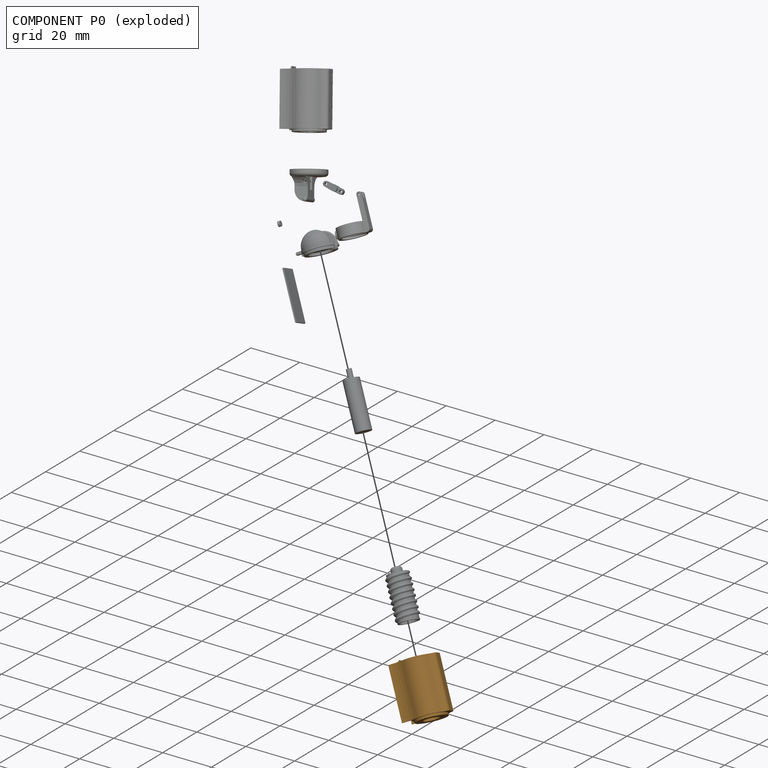
[diagram: component P0 — exploded]
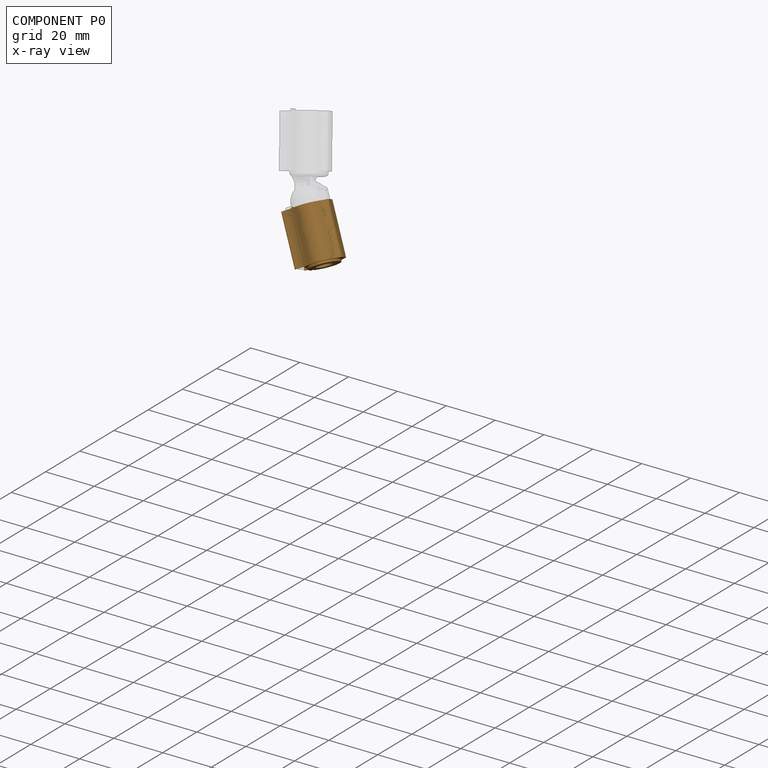
[diagram: component P0 — x-ray view]
COMPONENT P0 — geometry summary (no construction recipe available for this part):
  bounding box: 22.1 x 16.7 x 13.0 mm
  B-rep topology: 1 solid, 41 faces, 238 edges
  volume: 789 mm^3 (16% of its bounding box)
  symmetry: mirror-symmetric across its y mid-plane
Held by: FASTENED mate "Pcb-to-Sleeve" to P9; FASTENED mate "Top-to-Sleeve" to P7.
PROVENANCE & LICENSES
Assembly (occurrences, transforms, mates, per-part STEP geometry): AutoMate dataset, Zenodo record 7776208, CC0.
Construction recipes: CADFS (HuggingFace VladPyatov/CADFS, CC-BY-4.0, layered over the ABC dataset), FeatureScript reconstruction programs keyed by ABC model id.
Join: ABC meta listings map ABC model id -> Onshape documentId; within a shared document, parts are matched by geometric signature (bounding-box dims + volume at 0.1% relative tolerance, exact B-rep face/solid counts).
Verification: 4 of this assembly's 10 components carry a recipe attachment, and every attachment is mesh-verified: the CADFS STEP and the AutoMate member STEP were compared as meshes in their shared local frame (symmetric sampled-point-to-mesh distance); worst across the 4 attachments: below the mesh-comparison resolution (tessellation chordal tolerance ~0.0352 mm) on a 23 mm part.
Renders: orthographic iso camera (az 35 / el 25); the floor grid conveys scale (grid pitch printed in each image; no ruler). In the exploded view each component is displaced by its stored offset vector: the offsets alone carry the explosion direction (mate normal/axis signs are not orientation cues and do not encode it), and separation distances are assigned per mate-chain, not proportionally to assembly-order depth.
